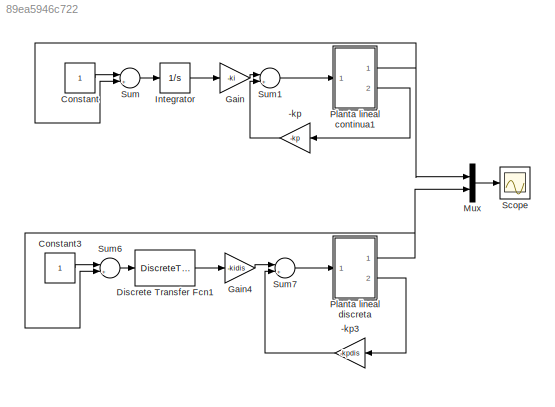
MODEL slx_89ea5946c722
KIND model
CONFIG AbsTol = auto
CONFIG FixedStep = auto
CONFIG MaxStep = auto
CONFIG MinStep = auto
CONFIG RelTol = 1e-3
CONFIG SampleTimeConstraint = Unconstrained
CONFIG Solver = ode45
CONFIG SolverMode = Auto
CONFIG SolverName = ode45
CONFIG StartTime = 0.0
CONFIG StopTime = 10
BLOCK [Gain] -kp
  Gain = -kp
  Multiplication = Matrix(K*u) (u vector)
  OutDataTypeStr = Inherit: Inherit via internal rule
  ParamDataTypeStr = Inherit: Inherit via internal rule
  SaturateOnIntegerOverflow = off
BLOCK [Gain] -kp3
  Gain = -kpdis
  Multiplication = Matrix(K*u) (u vector)
  OutDataTypeStr = Inherit: Inherit via internal rule
  ParamDataTypeStr = Inherit: Inherit via internal rule
  SampleTime = tm
  SaturateOnIntegerOverflow = off
BLOCK [Constant] Constant
BLOCK [Constant] Constant3
  SampleTime = tm
BLOCK [DiscreteTransferFcn] Discrete Transfer Fcn1
  Denominator = [1 -1]
  InputPortMap = u0
  Numerator = [1 0]
  Ports = [1, 1]
  SampleTime = tm
BLOCK [Gain] Gain
  Gain = -ki
  Multiplication = Matrix(K*u) (u vector)
  OutDataTypeStr = Inherit: Inherit via internal rule
  ParamDataTypeStr = Inherit: Inherit via internal rule
  SaturateOnIntegerOverflow = off
BLOCK [Gain] Gain4
  Gain = -kidis
  Multiplication = Matrix(K*u) (u vector)
  OutDataTypeStr = Inherit: Inherit via internal rule
  ParamDataTypeStr = Inherit: Inherit via internal rule
  SampleTime = tm
  SaturateOnIntegerOverflow = off
BLOCK [Integrator] Integrator
  Ports = [1, 1]
BLOCK [Mux] Mux
  DisplayOption = bar
  Inputs = 2
  Ports = [2, 1]
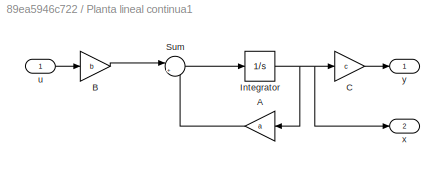
BLOCK [SubSystem] Planta lineal continua1
  Ports = [1, 2]
  RequestExecContextInheritance = off
  Variant = off
BLOCK [Gain] Planta lineal continua1/A
  Gain = a
  Multiplication = Matrix(K*u) (u vector)
  OutDataTypeStr = Inherit: Inherit via internal rule
  ParamDataTypeStr = Inherit: Inherit via internal rule
  SaturateOnIntegerOverflow = off
BLOCK [Gain] Planta lineal continua1/B
  Gain = b
  Multiplication = Matrix(K*u) (u vector)
  OutDataTypeStr = Inherit: Inherit via internal rule
  ParamDataTypeStr = Inherit: Inherit via internal rule
  SaturateOnIntegerOverflow = off
BLOCK [Gain] Planta lineal continua1/C
  Gain = c
  Multiplication = Matrix(K*u) (u vector)
  OutDataTypeStr = Inherit: Inherit via internal rule
  ParamDataTypeStr = Inherit: Inherit via internal rule
  SaturateOnIntegerOverflow = off
BLOCK [Integrator] Planta lineal continua1/Integrator
  Ports = [1, 1]
BLOCK [Sum] Planta lineal continua1/Sum
  IconShape = round
  InputSameDT = off
  Inputs = |++
  OutDataTypeStr = Inherit: Inherit via internal rule
  Ports = [2, 1]
  SaturateOnIntegerOverflow = off
BLOCK [Inport] Planta lineal continua1/u
  IconDisplay = Port number
BLOCK [Outport] Planta lineal continua1/x
  IconDisplay = Port number
  Port = 2
BLOCK [Outport] Planta lineal continua1/y
  IconDisplay = Port number
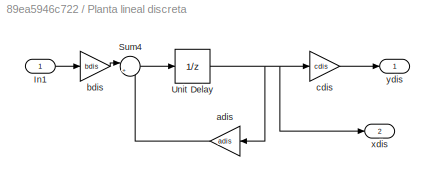
BLOCK [SubSystem] Planta lineal discreta
  Ports = [1, 2]
  RequestExecContextInheritance = off
  Variant = off
BLOCK [Inport] Planta lineal discreta/In1
  IconDisplay = Port number
BLOCK [Sum] Planta lineal discreta/Sum4
  IconShape = round
  InputSameDT = off
  Inputs = |++
  OutDataTypeStr = Inherit: Inherit via internal rule
  Ports = [2, 1]
  SaturateOnIntegerOverflow = off
BLOCK [UnitDelay] Planta lineal discreta/Unit Delay
  InputProcessing = Elements as channels (sample based)
  SampleTime = tm
BLOCK [Gain] Planta lineal discreta/adis
  Gain = adis
  Multiplication = Matrix(K*u) (u vector)
  OutDataTypeStr = Inherit: Inherit via internal rule
  ParamDataTypeStr = Inherit: Inherit via internal rule
  SampleTime = tm
  SaturateOnIntegerOverflow = off
BLOCK [Gain] Planta lineal discreta/bdis
  Gain = bdis
  Multiplication = Matrix(K*u) (u vector)
  OutDataTypeStr = Inherit: Inherit via internal rule
  ParamDataTypeStr = Inherit: Inherit via internal rule
  SampleTime = tm
  SaturateOnIntegerOverflow = off
BLOCK [Gain] Planta lineal discreta/cdis
  Gain = cdis
  Multiplication = Matrix(K*u) (u vector)
  OutDataTypeStr = Inherit: Inherit via internal rule
  ParamDataTypeStr = Inherit: Inherit via internal rule
  SampleTime = tm
  SaturateOnIntegerOverflow = off
BLOCK [Outport] Planta lineal discreta/xdis
  IconDisplay = Port number
  Port = 2
BLOCK [Outport] Planta lineal discreta/ydis
  IconDisplay = Port number
BLOCK [Scope] Scope
  Ports = [1]
  ScopeSpecificationString = Simulink.scopes.TimeScopeBlockCfg('CurrentConfiguration', extmgr.ConfigurationSet(extmgr.Configuration('Core','General UI',true,'FigureColor',[1 1 1]),extmgr.Configuration('Core','Source UI',true),extmgr.Configuration('Sources','WiredSimulink',true,'DataLoggingSaveFormat','StructureWithTime','DataLoggingLimitDataPoints',true,'DataLoggingDecimation','1','DataLoggingDecimateData',true),extmgr.Config...<+1931ch>
BLOCK [Sum] Sum
  InputSameDT = off
  Inputs = |+-
  OutDataTypeStr = Inherit: Inherit via internal rule
  Ports = [2, 1]
  SaturateOnIntegerOverflow = off
BLOCK [Sum] Sum1
  InputSameDT = off
  Inputs = |++
  OutDataTypeStr = Inherit: Inherit via internal rule
  Ports = [2, 1]
  SaturateOnIntegerOverflow = off
BLOCK [Sum] Sum6
  InputSameDT = off
  Inputs = |+-
  OutDataTypeStr = Inherit: Inherit via internal rule
  Ports = [2, 1]
  SaturateOnIntegerOverflow = off
BLOCK [Sum] Sum7
  InputSameDT = off
  Inputs = |++
  OutDataTypeStr = Inherit: Inherit via internal rule
  Ports = [2, 1]
  SaturateOnIntegerOverflow = off
LINE -kp3:1 -> Sum7:2
LINE -kp:1 -> Sum1:2
LINE Constant3:1 -> Sum6:1
LINE Constant:1 -> Sum:1
LINE Discrete Transfer Fcn1:1 -> Gain4:1
LINE Gain4:1 -> Sum7:1
LINE Gain:1 -> Sum1:1
LINE Integrator:1 -> Gain:1
LINE Mux:1 -> Scope:1
LINE Planta lineal continua1/A:1 -> Planta lineal continua1/Sum:2
LINE Planta lineal continua1/B:1 -> Planta lineal continua1/Sum:1
LINE Planta lineal continua1/C:1 -> Planta lineal continua1/y:1
NET Planta lineal continua1/Integrator:1 -> Planta lineal continua1/A:1, Planta lineal continua1/C:1, Planta lineal continua1/x:1
LINE Planta lineal continua1/Sum:1 -> Planta lineal continua1/Integrator:1
LINE Planta lineal continua1/u:1 -> Planta lineal continua1/B:1
NET Planta lineal continua1:1 -> Mux:1, Sum:2
LINE Planta lineal continua1:2 -> -kp:1
LINE Planta lineal discreta/In1:1 -> Planta lineal discreta/bdis:1
LINE Planta lineal discreta/Sum4:1 -> Planta lineal discreta/Unit Delay:1
NET Planta lineal discreta/Unit Delay:1 -> Planta lineal discreta/adis:1, Planta lineal discreta/cdis:1, Planta lineal discreta/xdis:1
LINE Planta lineal discreta/adis:1 -> Planta lineal discreta/Sum4:2
LINE Planta lineal discreta/bdis:1 -> Planta lineal discreta/Sum4:1
LINE Planta lineal discreta/cdis:1 -> Planta lineal discreta/ydis:1
NET Planta lineal discreta:1 -> Mux:2, Sum6:2
LINE Planta lineal discreta:2 -> -kp3:1
LINE Sum1:1 -> Planta lineal continua1:1
LINE Sum6:1 -> Discrete Transfer Fcn1:1
LINE Sum7:1 -> Planta lineal discreta:1
LINE Sum:1 -> Integrator:1
note: NET lines group one-source signal fan-out (src -> all destinations, sorted); 1:1 wires keep LINE
